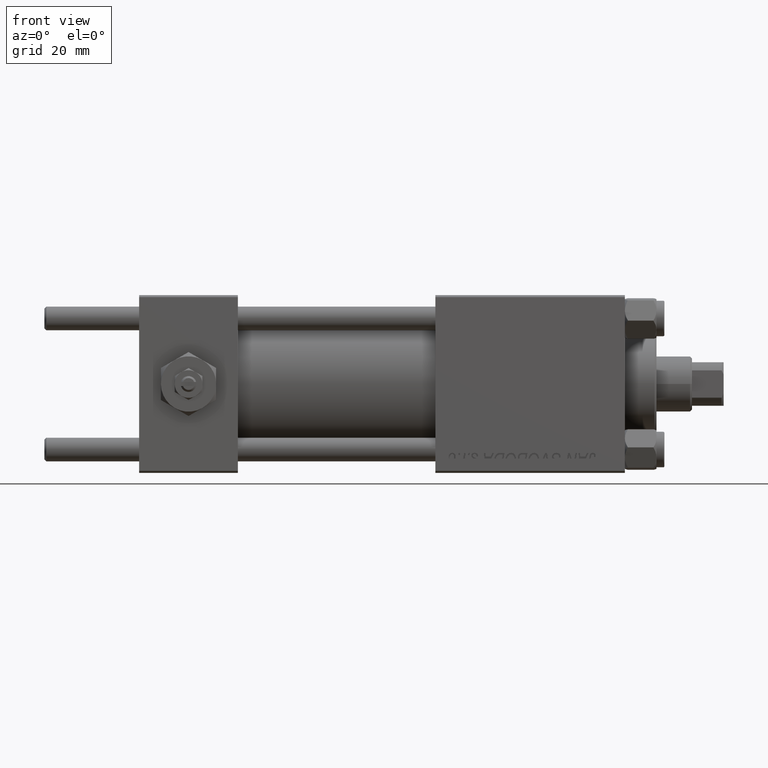
[diagram: clean part render]
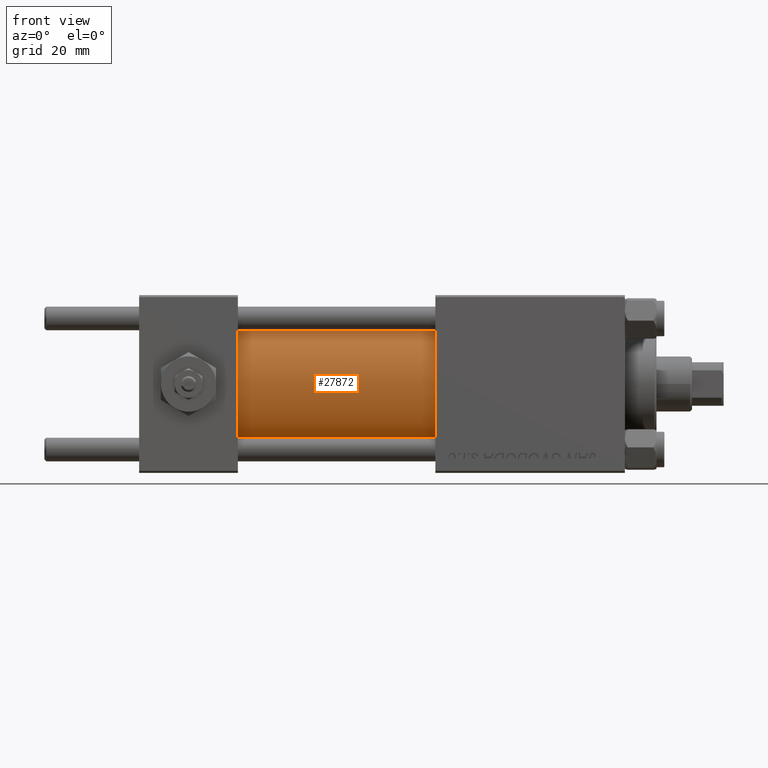
[diagram: same view with one face highlighted and labeled with its STEP entity id]
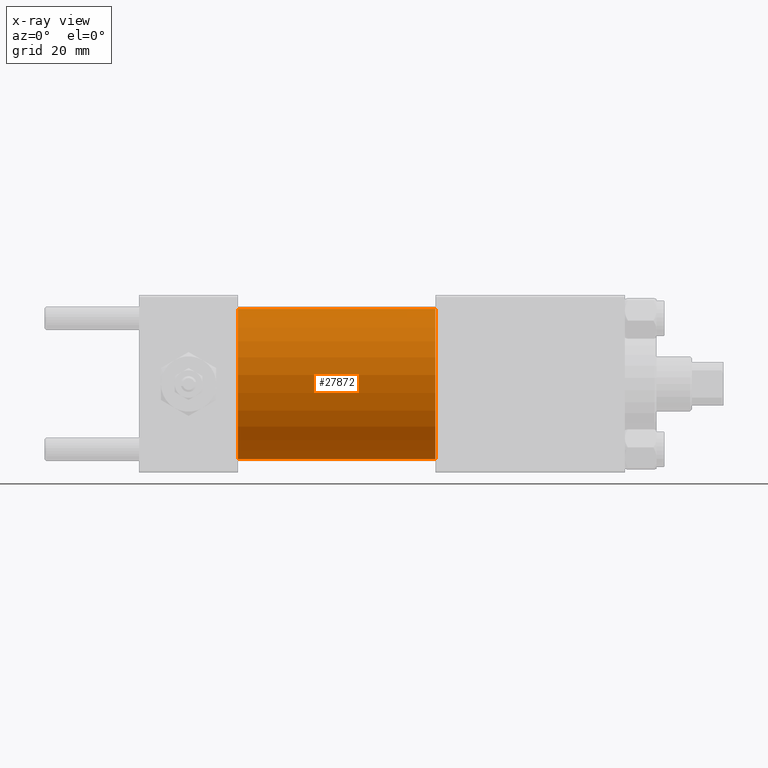
[diagram: x-ray of the same camera — body ghosted, the highlighted face saturated]
A machine part, front view. The second image highlights one B-rep face of the part: STEP entity #27872.
The next image is the same camera in x-ray: the body ghosted, the highlighted face saturated — about 0% of this face is hidden behind the body in this view.
In plain terms, the highlighted cylindrical surface (partial cylindrical patch) has radius 19 mm, axis along (-1, -0, -0).
Its self-contained STEP definition (entity closure, byte-faithful):
#1625 = CIRCLE ( 'NONE', #26661, 19.00000000000000000 ) ;
#3622 = CYLINDRICAL_SURFACE ( 'NONE', #32606, 19.00000000000000000 ) ;
#3638 = CARTESIAN_POINT ( 'NONE',  ( 25.00000000000000000, 0.000000000000000000, 0.000000000000000000 ) ) ;
#4672 = DIRECTION ( 'NONE',  ( -1.000000000000000000, -0.000000000000000000, -0.000000000000000000 ) ) ;
#5537 = EDGE_CURVE ( 'NONE', #45876, #37290, #6008, .T. ) ;
#6008 = LINE ( 'NONE', #22464, #15829 ) ;
#8641 = DIRECTION ( 'NONE',  ( 0.000000000000000000, 0.000000000000000000, -1.000000000000000000 ) ) ;
#8980 = ORIENTED_EDGE ( 'NONE', *, *, #47239, .T. ) ;
#12013 = DIRECTION ( 'NONE',  ( 1.000000000000000000, -0.000000000000000000, 0.000000000000000000 ) ) ;
#13705 = CARTESIAN_POINT ( 'NONE',  ( 25.00000000000000000, 0.000000000000000000, 19.00000000000000000 ) ) ;
#15648 = CARTESIAN_POINT ( 'NONE',  ( 75.00000000000001421, 0.000000000000000000, 0.000000000000000000 ) ) ;
#15829 = VECTOR ( 'NONE', #38413, 1000.000000000000000 ) ;
#18123 = AXIS2_PLACEMENT_3D ( 'NONE', #3638, #12013, #48054 ) ;
#19695 = CARTESIAN_POINT ( 'NONE',  ( 25.00000000000000000, 2.326828918379970970E-15, -19.00000000000000000 ) ) ;
#19816 = DIRECTION ( 'NONE',  ( 0.000000000000000000, 0.000000000000000000, 1.000000000000000000 ) ) ;
#20653 = CARTESIAN_POINT ( 'NONE',  ( 75.00000000000001421, 0.000000000000000000, 0.000000000000000000 ) ) ;
#21410 = EDGE_CURVE ( 'NONE', #25948, #37290, #23991, .T. ) ;
#22464 = CARTESIAN_POINT ( 'NONE',  ( 75.00000000000001421, 2.326828918379970970E-15, -19.00000000000000000 ) ) ;
#22578 = ORIENTED_EDGE ( 'NONE', *, *, #5537, .F. ) ;
#23745 = DIRECTION ( 'NONE',  ( -1.000000000000000000, -0.000000000000000000, -0.000000000000000000 ) ) ;
#23991 = CIRCLE ( 'NONE', #18123, 19.00000000000000000 ) ;
#24542 = LINE ( 'NONE', #43654, #35071 ) ;
#25948 = VERTEX_POINT ( 'NONE', #13705 ) ;
#26661 = AXIS2_PLACEMENT_3D ( 'NONE', #20653, #40023, #8641 ) ;
#27872 = ADVANCED_FACE ( 'NONE', ( #43360 ), #3622, .T. ) ;
#29638 = EDGE_CURVE ( 'NONE', #47779, #45876, #1625, .T. ) ;
#32606 = AXIS2_PLACEMENT_3D ( 'NONE', #15648, #23745, #19816 ) ;
#34275 = ORIENTED_EDGE ( 'NONE', *, *, #29638, .F. ) ;
#35071 = VECTOR ( 'NONE', #4672, 1000.000000000000000 ) ;
#36063 = ORIENTED_EDGE ( 'NONE', *, *, #21410, .T. ) ;
#37290 = VERTEX_POINT ( 'NONE', #19695 ) ;
#38413 = DIRECTION ( 'NONE',  ( -1.000000000000000000, -0.000000000000000000, -0.000000000000000000 ) ) ;
#40023 = DIRECTION ( 'NONE',  ( 1.000000000000000000, 0.000000000000000000, 0.000000000000000000 ) ) ;
#41335 = EDGE_LOOP ( 'NONE', ( #22578, #34275, #8980, #36063 ) ) ;
#43360 = FACE_OUTER_BOUND ( 'NONE', #41335, .T. ) ;
#43654 = CARTESIAN_POINT ( 'NONE',  ( 75.00000000000001421, 0.000000000000000000, 19.00000000000000000 ) ) ;
#45876 = VERTEX_POINT ( 'NONE', #51439 ) ;
#46660 = CARTESIAN_POINT ( 'NONE',  ( 75.00000000000001421, 0.000000000000000000, 19.00000000000000000 ) ) ;
#47239 = EDGE_CURVE ( 'NONE', #47779, #25948, #24542, .T. ) ;
#47779 = VERTEX_POINT ( 'NONE', #46660 ) ;
#48054 = DIRECTION ( 'NONE',  ( 0.000000000000000000, 0.000000000000000000, 1.000000000000000000 ) ) ;
#51439 = CARTESIAN_POINT ( 'NONE',  ( 75.00000000000001421, 2.326828918379970970E-15, -19.00000000000000000 ) ) ;